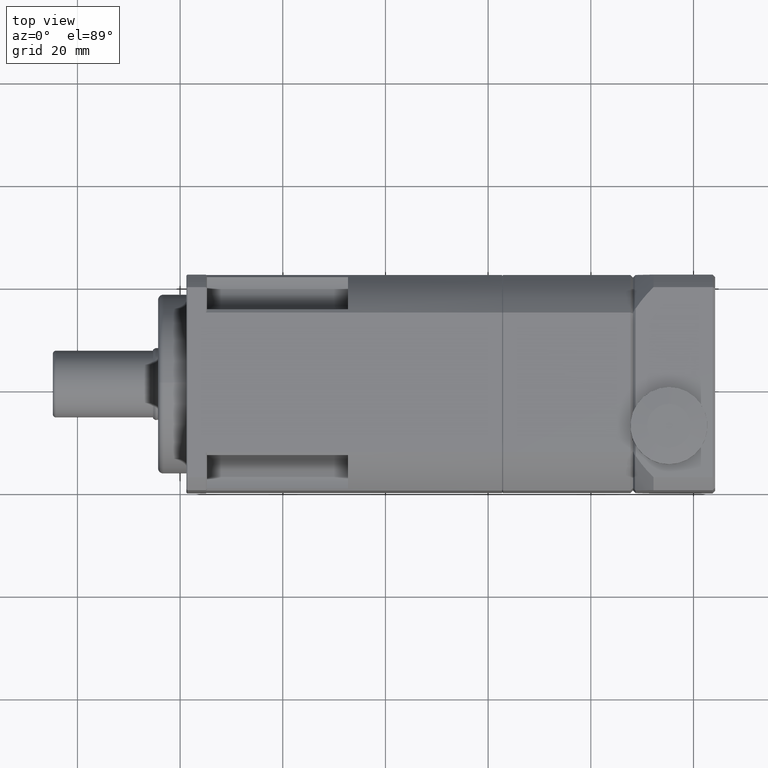
[diagram: clean part render]
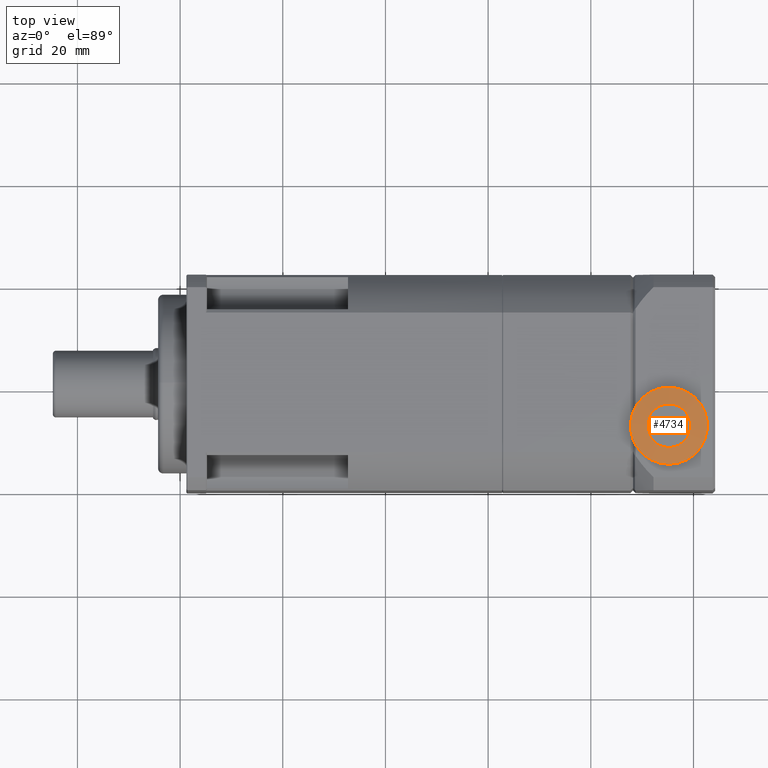
[diagram: same view with one face highlighted and labeled with its STEP entity id]
A machine part, top view. The second image highlights one B-rep face of the part: STEP entity #4734.
In plain terms, the highlighted conical surface has half-angle 84.726 deg.
Its self-contained STEP definition (entity closure, byte-faithful):
#612=CONICAL_SURFACE('',#5107,5.875,84.7261040426483);
#877=FACE_BOUND('',#1397,.T.);
#1040=FACE_OUTER_BOUND('',#1396,.T.);
#1396=EDGE_LOOP('',(#3268));
#1397=EDGE_LOOP('',(#3269));
#1817=CIRCLE('',#5106,4.25);
#1818=CIRCLE('',#5108,7.5);
#2120=VERTEX_POINT('',#7310);
#2121=VERTEX_POINT('',#7313);
#2571=EDGE_CURVE('',#2120,#2120,#1817,.T.);
#2572=EDGE_CURVE('',#2121,#2121,#1818,.T.);
#3268=ORIENTED_EDGE('',*,*,#2571,.T.);
#3269=ORIENTED_EDGE('',*,*,#2572,.F.);
#4734=ADVANCED_FACE('',(#1040,#877),#612,.T.);
#5106=AXIS2_PLACEMENT_3D('',#7311,#5834,#5835);
#5107=AXIS2_PLACEMENT_3D('',#7312,#5836,#5837);
#5108=AXIS2_PLACEMENT_3D('',#7314,#5838,#5839);
#5834=DIRECTION('center_axis',(-1.93008699861478E-15,-9.82216953274033E-15,
-1.));
#5835=DIRECTION('ref_axis',(-1.,9.64466294450086E-15,1.93008699861469E-15));
#5836=DIRECTION('center_axis',(-1.93008699861478E-15,-9.82216953274033E-15,
-1.));
#5837=DIRECTION('ref_axis',(9.64466294450084E-15,1.,-9.81709773335512E-15));
#5838=DIRECTION('center_axis',(-1.93008699861478E-15,-9.82216953274033E-15,
-1.));
#5839=DIRECTION('ref_axis',(-1.,9.64466294450086E-15,1.93008699861469E-15));
#7310=CARTESIAN_POINT('',(55.2159950143863,-43.1174851319122,-4.84775529413339));
#7311=CARTESIAN_POINT('Origin',(55.2159950143863,-47.3674851319122,-4.84775529413335));
#7312=CARTESIAN_POINT('Origin',(55.2159950143863,-47.3674851319122,-4.99775529413335));
#7313=CARTESIAN_POINT('',(55.2159950143863,-39.8674851319122,-5.14775529413342));
#7314=CARTESIAN_POINT('Origin',(55.2159950143863,-47.3674851319122,-5.14775529413335));